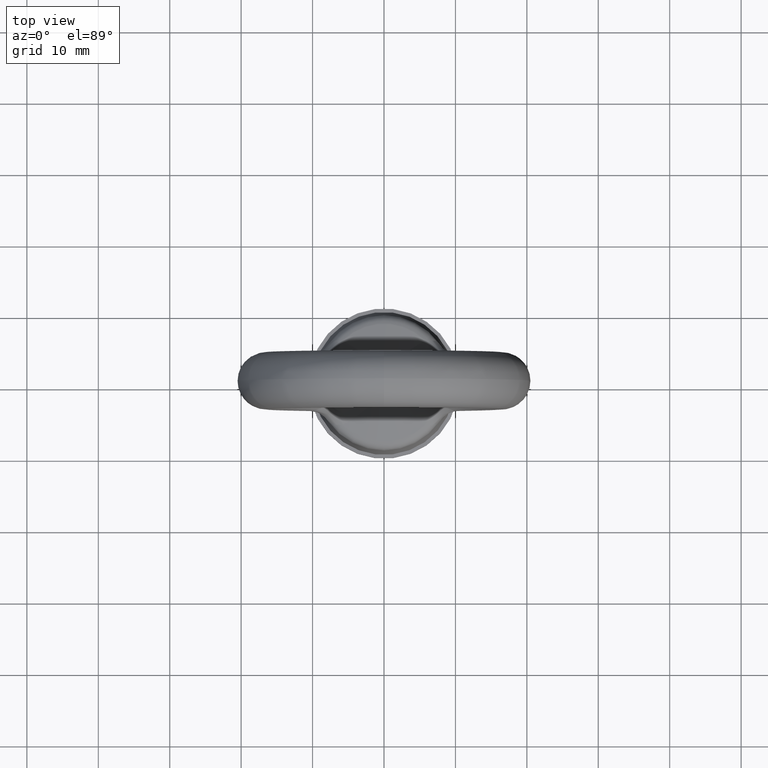
[diagram: clean part render]
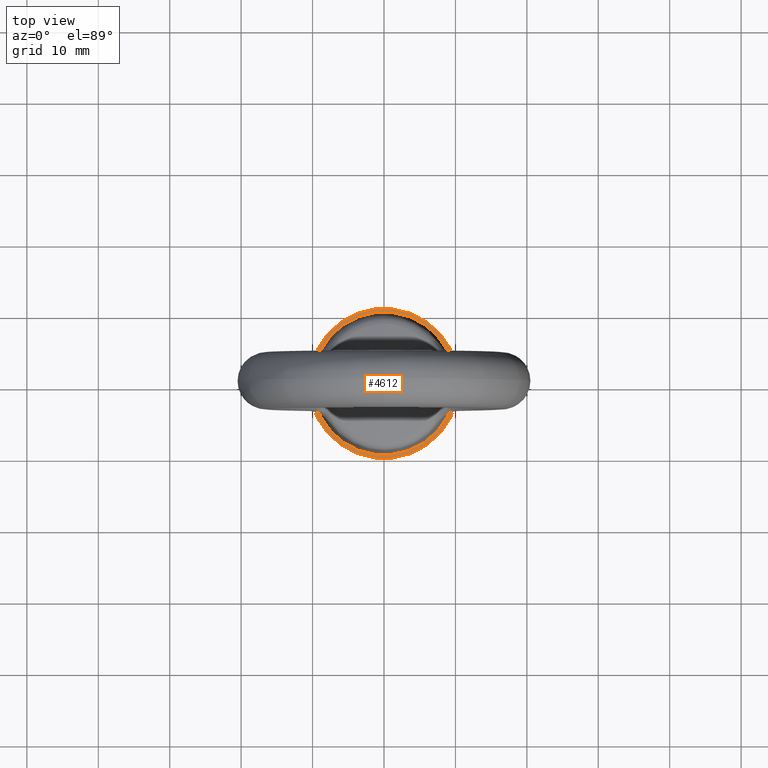
[diagram: same view with one face highlighted and labeled with its STEP entity id]
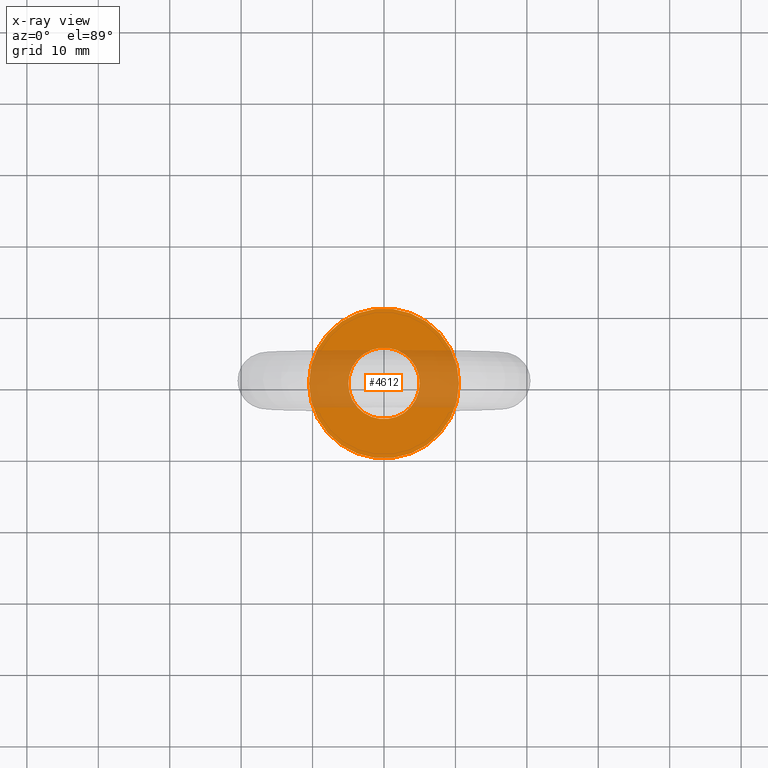
[diagram: x-ray of the same camera — body ghosted, the highlighted face saturated]
A machine part, top view. The second image highlights one B-rep face of the part: STEP entity #4612.
The next image is the same camera in x-ray: the body ghosted, the highlighted face saturated — about 36% of this face is hidden behind the body in this view.
In plain terms, the highlighted planar face has unit normal (0, 0, 1).
Its self-contained STEP definition (entity closure, byte-faithful):
#3366 = CARTESIAN_POINT ( 'NONE',  ( 0.0000000000000000000, 0.0000000000000000000, -21.00000000000000000 ) ) ;
#3367 = AXIS2_PLACEMENT_3D ( 'NONE', #3366, #3423, #3422 ) ;
#3405 = FACE_BOUND ( 'NONE', #4792, .T. ) ;
#3422 = DIRECTION ( 'NONE',  ( 1.000000000000000000, 0.0000000000000000000, 0.0000000000000000000 ) ) ;
#3423 = DIRECTION ( 'NONE',  ( 0.0000000000000000000, 0.0000000000000000000, 1.000000000000000000 ) ) ;
#3448 = PLANE ( 'NONE',  #3367 ) ;
#3449 = FACE_OUTER_BOUND ( 'NONE', #4712, .T. ) ;
#3697 = CARTESIAN_POINT ( 'NONE',  ( 10.50000000000000000, 1.285836671513496100E-015, -21.00000000000000000 ) ) ;
#3698 = CARTESIAN_POINT ( 'NONE',  ( -10.50000000000000000, 0.0000000000000000000, -21.00000000000000000 ) ) ;
#3699 = DIRECTION ( 'NONE',  ( 1.000000000000000000, 0.0000000000000000000, 0.0000000000000000000 ) ) ;
#3700 = DIRECTION ( 'NONE',  ( 0.0000000000000000000, 0.0000000000000000000, -1.000000000000000000 ) ) ;
#3701 = CARTESIAN_POINT ( 'NONE',  ( 0.0000000000000000000, 0.0000000000000000000, -21.00000000000000000 ) ) ;
#3702 = AXIS2_PLACEMENT_3D ( 'NONE', #3701, #3700, #3699 ) ;
#3703 = CIRCLE ( 'NONE', #3702, 10.50000000000000000 ) ;
#3745 = DIRECTION ( 'NONE',  ( 1.000000000000000000, 0.0000000000000000000, 0.0000000000000000000 ) ) ;
#3746 = DIRECTION ( 'NONE',  ( 0.0000000000000000000, 0.0000000000000000000, -1.000000000000000000 ) ) ;
#3747 = CARTESIAN_POINT ( 'NONE',  ( 0.0000000000000000000, 0.0000000000000000000, -21.00000000000000000 ) ) ;
#3748 = AXIS2_PLACEMENT_3D ( 'NONE', #3747, #3746, #3745 ) ;
#3753 = CIRCLE ( 'NONE', #3748, 10.50000000000000000 ) ;
#3761 = DIRECTION ( 'NONE',  ( 1.000000000000000000, 0.0000000000000000000, 0.0000000000000000000 ) ) ;
#3762 = DIRECTION ( 'NONE',  ( 0.0000000000000000000, 0.0000000000000000000, -1.000000000000000000 ) ) ;
#3763 = CARTESIAN_POINT ( 'NONE',  ( 0.0000000000000000000, 0.0000000000000000000, -21.00000000000000000 ) ) ;
#3764 = AXIS2_PLACEMENT_3D ( 'NONE', #3763, #3762, #3761 ) ;
#3765 = CIRCLE ( 'NONE', #3764, 5.000000000000000000 ) ;
#3786 = CARTESIAN_POINT ( 'NONE',  ( -5.000000000000000000, 0.0000000000000000000, -21.00000000000000000 ) ) ;
#3787 = CARTESIAN_POINT ( 'NONE',  ( 5.000000000000000000, 6.123031769111886300E-016, -21.00000000000000000 ) ) ;
#3788 = DIRECTION ( 'NONE',  ( 1.000000000000000000, 0.0000000000000000000, 0.0000000000000000000 ) ) ;
#3789 = DIRECTION ( 'NONE',  ( 0.0000000000000000000, 0.0000000000000000000, -1.000000000000000000 ) ) ;
#3790 = CARTESIAN_POINT ( 'NONE',  ( 0.0000000000000000000, 0.0000000000000000000, -21.00000000000000000 ) ) ;
#3791 = AXIS2_PLACEMENT_3D ( 'NONE', #3790, #3789, #3788 ) ;
#3792 = CIRCLE ( 'NONE', #3791, 5.000000000000000000 ) ;
#4612 = ADVANCED_FACE ( 'NONE', ( #3405, #3449 ), #3448, .T. ) ;
#4613 = ORIENTED_EDGE ( 'NONE', *, *, #4780, .T. ) ;
#4712 = EDGE_LOOP ( 'NONE', ( #4713, #4714 ) ) ;
#4713 = ORIENTED_EDGE ( 'NONE', *, *, #4824, .F. ) ;
#4714 = ORIENTED_EDGE ( 'NONE', *, *, #4788, .F. ) ;
#4767 = EDGE_CURVE ( 'NONE', #4768, #4769, #3792, .T. ) ;
#4768 = VERTEX_POINT ( 'NONE', #3787 ) ;
#4769 = VERTEX_POINT ( 'NONE', #3786 ) ;
#4780 = EDGE_CURVE ( 'NONE', #4769, #4768, #3765, .T. ) ;
#4788 = EDGE_CURVE ( 'NONE', #4826, #4825, #3753, .T. ) ;
#4792 = EDGE_LOOP ( 'NONE', ( #4613, #4793 ) ) ;
#4793 = ORIENTED_EDGE ( 'NONE', *, *, #4767, .T. ) ;
#4824 = EDGE_CURVE ( 'NONE', #4825, #4826, #3703, .T. ) ;
#4825 = VERTEX_POINT ( 'NONE', #3698 ) ;
#4826 = VERTEX_POINT ( 'NONE', #3697 ) ;